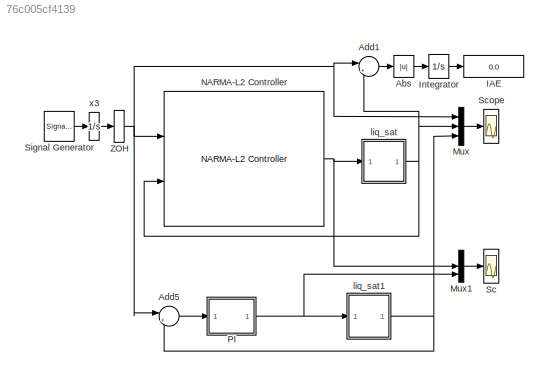
MODEL slx_76c005cf4139
KIND model
CONFIG AbsTol = 1e-8
CONFIG EnableMultiTasking = on
CONFIG FixedStep = auto
CONFIG MaxStep = auto
CONFIG MinStep = auto
CONFIG RelTol = 1e-3
CONFIG SampleTimeConstraint = Unconstrained
CONFIG Solver = ode45
CONFIG SolverName = ode45
CONFIG StartTime = 0.0
CONFIG StopTime = 600
BLOCK [Abs] Abs
  SaturateOnIntegerOverflow = off
BLOCK [Sum] Add1
  IconShape = round
  InputSameDT = off
  Inputs = |+-
  OutDataTypeStr = Inherit: Inherit via internal rule
  Ports = [2, 1]
  SaturateOnIntegerOverflow = off
BLOCK [Sum] Add5
  IconShape = round
  InputSameDT = off
  Inputs = |+-
  OutDataTypeStr = Inherit: Inherit via internal rule
  Ports = [2, 1]
  SaturateOnIntegerOverflow = off
BLOCK [Display] IAE
  Decimation = 1
  Ports = [1]
BLOCK [Integrator] Integrator
  Ports = [1, 1]
BLOCK [Mux] Mux
  DisplayOption = bar
  Inputs = 3
  Ports = [3, 1]
BLOCK [Mux] Mux1
  DisplayOption = bar
  Inputs = 3
  Ports = [3, 1]
BLOCK [Reference] NARMA-L2 Controller  REF=neural/Control Systems/NARMA-L2 Controller
  Ports = [2, 1]
  SourceBlock = neural/Control Systems/NARMA-L2 Controller
  SourceType = NARMA-L2 Controller
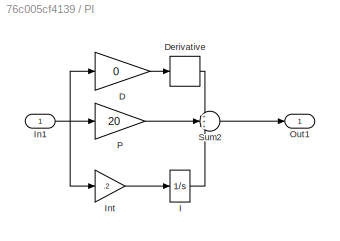
BLOCK [SubSystem] PI
  Ports = [1, 1]
  RequestExecContextInheritance = off
  Variant = off
BLOCK [Gain] PI/D
  Gain = 0
  OutDataTypeStr = Inherit: Inherit via internal rule
  ParamDataTypeStr = Inherit: Inherit via internal rule
  SaturateOnIntegerOverflow = off
BLOCK [Derivative] PI/Derivative
BLOCK [Integrator] PI/I
  Ports = [1, 1]
BLOCK [Inport] PI/In1
  IconDisplay = Port number
BLOCK [Gain] PI/Int
  Gain = .2
  OutDataTypeStr = Inherit: Inherit via internal rule
  ParamDataTypeStr = Inherit: Inherit via internal rule
  SaturateOnIntegerOverflow = off
BLOCK [Outport] PI/Out1
  IconDisplay = Port number
BLOCK [Gain] PI/P
  Gain = 20
  OutDataTypeStr = Inherit: Inherit via internal rule
  ParamDataTypeStr = Inherit: Inherit via internal rule
  SaturateOnIntegerOverflow = off
BLOCK [Sum] PI/Sum2
  IconShape = round
  InputSameDT = off
  Inputs = +++
  OutDataTypeStr = Inherit: Inherit via internal rule
  Ports = [3, 1]
  SaturateOnIntegerOverflow = off
BLOCK [Scope] Sc
  NumInputPorts = 1
  Ports = [1]
  ScopeSpecificationString = C++SS(StrPVP('Location','[856, 406, 1273, 640]'),StrPVP('Open','off'),MxPVP('AxesTitles',24,'struct(''axes1'',''%<SignalLabel>'')'),StrPVP('TimeRange','600'),StrPVP('YMin','-100'),StrPVP('YMax','150'),StrPVP('SaveName','ScopeData1'),StrPVP('DataFormat','StructureWithTime'),StrPVP('BlockParamSampleTime','0'),StrPVP('LimitDataPoints','on'),StrPVP('Decimation','1'),StrPVP('BlockParamSampleInput','off...<+3ch>
BLOCK [Scope] Scope
  NumInputPorts = 1
  Ports = [1]
  ScopeSpecificationString = C++SS(StrPVP('Location','[854, 56, 1275, 403]'),StrPVP('Open','off'),MxPVP('AxesTitles',24,'struct(''axes1'',''%<SignalLabel>'')'),StrPVP('TimeRange','600'),StrPVP('YMin','-2'),StrPVP('YMax','16'),StrPVP('SaveToWorkspace','on'),StrPVP('SaveName','y'),StrPVP('DataFormat','StructureWithTime'),StrPVP('LimitDataPoints','off'),StrPVP('BlockParamSampleTime','0'),StrPVP('Decimation','1'),StrPVP('BlockPar...<+22ch>
BLOCK [SignalGenerator] Signal Generator
  Amplitude = -12/300
  Frequency = 1/600
  Ports = [0, 1]
  WaveForm = square
BLOCK [ZeroOrderHold] ZOH
  SampleTime = 100
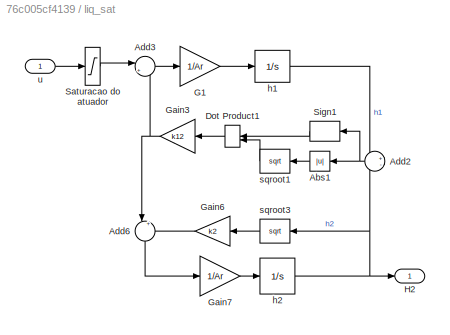
BLOCK [SubSystem] liq_sat
  Ports = [1, 1]
  RequestExecContextInheritance = off
  Variant = off
BLOCK [Abs] liq_sat/Abs1
  SaturateOnIntegerOverflow = off
BLOCK [Sum] liq_sat/Add2
  IconShape = round
  InputSameDT = off
  Inputs = +-
  OutDataTypeStr = Inherit: Inherit via internal rule
  Ports = [2, 1]
  SaturateOnIntegerOverflow = off
BLOCK [Sum] liq_sat/Add3
  IconShape = round
  InputSameDT = off
  Inputs = |+-
  OutDataTypeStr = Inherit: Inherit via internal rule
  Ports = [2, 1]
  SaturateOnIntegerOverflow = off
BLOCK [Sum] liq_sat/Add6
  IconShape = round
  InputSameDT = off
  Inputs = |+-
  OutDataTypeStr = Inherit: Inherit via internal rule
  Ports = [2, 1]
  SaturateOnIntegerOverflow = off
BLOCK [DotProduct] liq_sat/Dot Product1
  OutDataTypeStr = Inherit: Inherit via internal rule
BLOCK [Gain] liq_sat/G1
  Gain = 1/Ar
  OutDataTypeStr = Inherit: Inherit via internal rule
  ParamDataTypeStr = Inherit: Inherit via internal rule
  SaturateOnIntegerOverflow = off
BLOCK [Gain] liq_sat/Gain3
  Gain = k12
  OutDataTypeStr = Inherit: Inherit via internal rule
  ParamDataTypeStr = Inherit: Inherit via internal rule
  SaturateOnIntegerOverflow = off
BLOCK [Gain] liq_sat/Gain6
  Gain = k2
  OutDataTypeStr = Inherit: Inherit via internal rule
  ParamDataTypeStr = Inherit: Inherit via internal rule
  SaturateOnIntegerOverflow = off
BLOCK [Gain] liq_sat/Gain7
  Gain = 1/Ar
  OutDataTypeStr = Inherit: Inherit via internal rule
  ParamDataTypeStr = Inherit: Inherit via internal rule
  SaturateOnIntegerOverflow = off
BLOCK [Outport] liq_sat/H2
  IconDisplay = Port number
BLOCK [Saturate] liq_sat/Saturacao do atuador
  InputPortMap = u0
  LowerLimit = qmin
  Ports = [1, 1]
  UpperLimit = qmax
BLOCK [Signum] liq_sat/Sign1
BLOCK [Integrator] liq_sat/h1
  LimitOutput = on
  LowerSaturationLimit = 0
  Ports = [1, 1]
  UpperSaturationLimit = hmax
BLOCK [Integrator] liq_sat/h2
  LimitOutput = on
  LowerSaturationLimit = 0
  Ports = [1, 1]
  UpperSaturationLimit = hmax
BLOCK [Math] liq_sat/sqroot1
  Operator = sqrt
  Ports = [1, 1]
BLOCK [Math] liq_sat/sqroot3
  Operator = sqrt
  Ports = [1, 1]
BLOCK [Inport] liq_sat/u
  IconDisplay = Port number
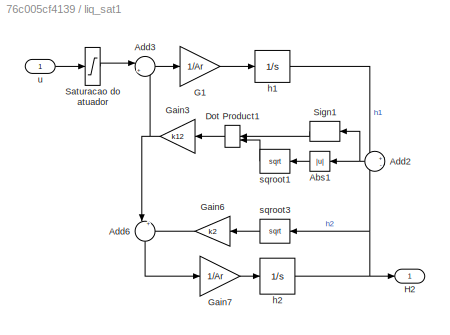
BLOCK [SubSystem] liq_sat1
  Ports = [1, 1]
  RequestExecContextInheritance = off
  Variant = off
BLOCK [Abs] liq_sat1/Abs1
  SaturateOnIntegerOverflow = off
BLOCK [Sum] liq_sat1/Add2
  IconShape = round
  InputSameDT = off
  Inputs = +-
  OutDataTypeStr = Inherit: Inherit via internal rule
  Ports = [2, 1]
  SaturateOnIntegerOverflow = off
BLOCK [Sum] liq_sat1/Add3
  IconShape = round
  InputSameDT = off
  Inputs = |+-
  OutDataTypeStr = Inherit: Inherit via internal rule
  Ports = [2, 1]
  SaturateOnIntegerOverflow = off
BLOCK [Sum] liq_sat1/Add6
  IconShape = round
  InputSameDT = off
  Inputs = |+-
  OutDataTypeStr = Inherit: Inherit via internal rule
  Ports = [2, 1]
  SaturateOnIntegerOverflow = off
BLOCK [DotProduct] liq_sat1/Dot Product1
  OutDataTypeStr = Inherit: Inherit via internal rule
BLOCK [Gain] liq_sat1/G1
  Gain = 1/Ar
  OutDataTypeStr = Inherit: Inherit via internal rule
  ParamDataTypeStr = Inherit: Inherit via internal rule
  SaturateOnIntegerOverflow = off
BLOCK [Gain] liq_sat1/Gain3
  Gain = k12
  OutDataTypeStr = Inherit: Inherit via internal rule
  ParamDataTypeStr = Inherit: Inherit via internal rule
  SaturateOnIntegerOverflow = off
BLOCK [Gain] liq_sat1/Gain6
  Gain = k2
  OutDataTypeStr = Inherit: Inherit via internal rule
  ParamDataTypeStr = Inherit: Inherit via internal rule
  SaturateOnIntegerOverflow = off
BLOCK [Gain] liq_sat1/Gain7
  Gain = 1/Ar
  OutDataTypeStr = Inherit: Inherit via internal rule
  ParamDataTypeStr = Inherit: Inherit via internal rule
  SaturateOnIntegerOverflow = off
BLOCK [Outport] liq_sat1/H2
  IconDisplay = Port number
BLOCK [Saturate] liq_sat1/Saturacao do atuador
  InputPortMap = u0
  LowerLimit = qmin
  Ports = [1, 1]
  UpperLimit = qmax
BLOCK [Signum] liq_sat1/Sign1
BLOCK [Integrator] liq_sat1/h1
  LimitOutput = on
  LowerSaturationLimit = 0
  Ports = [1, 1]
  UpperSaturationLimit = hmax
BLOCK [Integrator] liq_sat1/h2
  LimitOutput = on
  LowerSaturationLimit = 0
  Ports = [1, 1]
  UpperSaturationLimit = hmax
BLOCK [Math] liq_sat1/sqroot1
  Operator = sqrt
  Ports = [1, 1]
BLOCK [Math] liq_sat1/sqroot3
  Operator = sqrt
  Ports = [1, 1]
BLOCK [Inport] liq_sat1/u
  IconDisplay = Port number
BLOCK [Integrator] x3
  Ports = [1, 1]
LINE Abs:1 -> Integrator:1
LINE Add1:1 -> Abs:1
LINE Add5:1 -> PI:1
LINE Integrator:1 -> IAE:1
LINE Mux1:1 -> Sc:1
LINE Mux:1 -> Scope:1
NET NARMA-L2 Controller:1 -> Mux1:2, liq_sat:1
LINE PI/D:1 -> PI/Derivative:1
LINE PI/Derivative:1 -> PI/Sum2:1
LINE PI/I:1 -> PI/Sum2:3
NET PI/In1:1 -> PI/D:1, PI/Int:1, PI/P:1
LINE PI/Int:1 -> PI/I:1
LINE PI/P:1 -> PI/Sum2:2
LINE PI/Sum2:1 -> PI/Out1:1
NET PI:1 -> Mux1:3, liq_sat1:1
LINE Signal Generator:1 -> x3:1
NET ZOH:1 -> Add1:1, Add5:1, Mux:1, NARMA-L2 Controller:1
LINE liq_sat/Abs1:1 -> liq_sat/sqroot1:1
NET liq_sat/Add2:1 -> liq_sat/Abs1:1, liq_sat/Sign1:1
LINE liq_sat/Add3:1 -> liq_sat/G1:1
LINE liq_sat/Add6:1 -> liq_sat/Gain7:1
LINE liq_sat/Dot Product1:1 -> liq_sat/Gain3:1
LINE liq_sat/G1:1 -> liq_sat/h1:1
NET liq_sat/Gain3:1 -> liq_sat/Add3:2, liq_sat/Add6:1
LINE liq_sat/Gain6:1 -> liq_sat/Add6:2
LINE liq_sat/Gain7:1 -> liq_sat/h2:1
LINE liq_sat/Saturacao do atuador:1 -> liq_sat/Add3:1
LINE liq_sat/Sign1:1 -> liq_sat/Dot Product1:1
LINE liq_sat/h1:1 -> liq_sat/Add2:1
NET liq_sat/h2:1 -> liq_sat/Add2:2, liq_sat/H2:1, liq_sat/sqroot3:1
LINE liq_sat/sqroot1:1 -> liq_sat/Dot Product1:2
LINE liq_sat/sqroot3:1 -> liq_sat/Gain6:1
LINE liq_sat/u:1 -> liq_sat/Saturacao do atuador:1
LINE liq_sat1/Abs1:1 -> liq_sat1/sqroot1:1
NET liq_sat1/Add2:1 -> liq_sat1/Abs1:1, liq_sat1/Sign1:1
LINE liq_sat1/Add3:1 -> liq_sat1/G1:1
LINE liq_sat1/Add6:1 -> liq_sat1/Gain7:1
LINE liq_sat1/Dot Product1:1 -> liq_sat1/Gain3:1
LINE liq_sat1/G1:1 -> liq_sat1/h1:1
NET liq_sat1/Gain3:1 -> liq_sat1/Add3:2, liq_sat1/Add6:1
LINE liq_sat1/Gain6:1 -> liq_sat1/Add6:2
LINE liq_sat1/Gain7:1 -> liq_sat1/h2:1
LINE liq_sat1/Saturacao do atuador:1 -> liq_sat1/Add3:1
LINE liq_sat1/Sign1:1 -> liq_sat1/Dot Product1:1
LINE liq_sat1/h1:1 -> liq_sat1/Add2:1
NET liq_sat1/h2:1 -> liq_sat1/Add2:2, liq_sat1/H2:1, liq_sat1/sqroot3:1
LINE liq_sat1/sqroot1:1 -> liq_sat1/Dot Product1:2
LINE liq_sat1/sqroot3:1 -> liq_sat1/Gain6:1
LINE liq_sat1/u:1 -> liq_sat1/Saturacao do atuador:1
NET liq_sat1:1 -> Add5:2, Mux:3
NET liq_sat:1 -> Add1:2, Mux:2, NARMA-L2 Controller:2
LINE x3:1 -> ZOH:1
note: NET lines group one-source signal fan-out (src -> all destinations, sorted); 1:1 wires keep LINE
